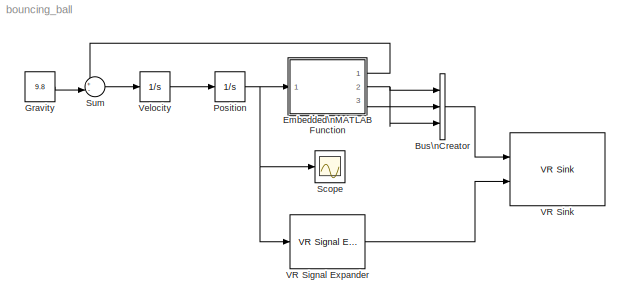
MODEL bouncing_ball
KIND model
BLOCK [BusCreator] Bus\nCreator
  DisplayOption = bar
  Inputs = 3
  Ports = [3, 1]
  SID = 14
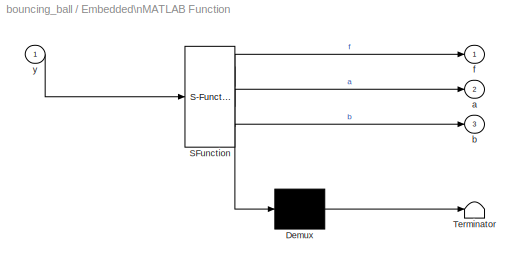
BLOCK [SubSystem] Embedded\nMATLAB Function
  ErrorFcn = Stateflow.Translate.translate
  FunctionWithSeparateData = off
  MaskHideContents = off
  MinAlgLoopOccurrences = off
  Opaque = off
  PermitHierarchicalResolution = ExplicitOnly
  Ports = [1, 3]
  PropExecContextOutsideSubsystem = off
  RTWSystemCode = Auto
  RequestExecContextInheritance = off
  SFBlockType = MATLAB Function
  SID = 4
  TreatAsAtomicUnit = on
BLOCK [Demux] Embedded\nMATLAB Function/ Demux 
  Outputs = 1
  Ports = [1, 1]
  SID = 4::16
BLOCK [S-Function] Embedded\nMATLAB Function/ SFunction 
  EnableBusSupport = on
  FunctionName = sf_sfun
  PortCounts = [1 4]
  Ports = [1, 4]
  SID = 4::15
  Tag = Stateflow S-Function bouncing_ball 2
BLOCK [Terminator] Embedded\nMATLAB Function/ Terminator 
  SID = 4::17
BLOCK [Outport] Embedded\nMATLAB Function/a
  IconDisplay = Port number
  Port = 2
  SID = 4::13
BLOCK [Outport] Embedded\nMATLAB Function/b
  IconDisplay = Port number
  Port = 3
  SID = 4::14
BLOCK [Outport] Embedded\nMATLAB Function/f
  IconDisplay = Port number
  SID = 4::12
BLOCK [Inport] Embedded\nMATLAB Function/y
  IconDisplay = Port number
  SID = 4::11
BLOCK [Constant] Gravity
  SID = 1
  Value = 9.8
BLOCK [Integrator] Position
  InitialCondition = 20
  Ports = [1, 1]
  SID = 3
BLOCK [Scope] Scope
  DataFormat = StructureWithTime
  Floating = off
  NumInputPorts = 1
  Ports = [1]
  SID = 6
  SampleTime = 0
  ShowLegends = off
  YMax = 22.5
  YMin = 0
BLOCK [Sum] Sum
  IconShape = round
  InputSameDT = off
  Inputs = +-|
  OutDataTypeStr = Inherit: Inherit via internal rule
  Ports = [2, 1]
  SID = 5
  SaturateOnIntegerOverflow = off
BLOCK [Reference] VR Signal Expander  REF=vrlib/VR Signal Expander
  Ports = [1, 1]
  SID = 11
  SourceBlock = vrlib/VR Signal Expander
  SourceType = VR Signal Expander
  outidx = [2]
  outwidth = 3
BLOCK [Reference] VR Sink  REF=vrlib/VR Sink
  AllowVariableSize = off
  AutoView = off
  FieldsWritten = Ball.scale.3.1.double#Ball.translation.3.1.double
  FigureProperties = {'Position', 'Name', 'Viewpoint', 'CameraBound', 'CameraDirection', 'CameraPosition', 'CameraUpVector', 'ZoomFactor', 'Antialiasing', 'Headlight', 'Lighting', 'NavPanel', 'StatusBar', 'ToolBar', 'Textures', 'Transparency', 'Triad', 'Wireframe', 'NavZones', 'NavMode', 'NavSpeed', 'CaptureFileFormat', 'CaptureFileName', 'Record2DCompressMethod', 'Record2DCompressQuality', 'Record2D', 'Record2DFileNa...<+597ch>
  InstantiateOnLoad = on
  Ports = [2]
  RemoteChange = off
  RemoteView = on
  SID = 10
  SampleTime = 0.01
  SourceBlock = vrlib/VR Sink
  SourceType = Virtual Reality Sink
  VideoDimensions = []
  ViewEnable = on
  WorldFileName = bouncing_ball.wrl
BLOCK [Integrator] Velocity
  Ports = [1, 1]
  SID = 2
LINE Bus\nCreator:1 -> VR Sink:1
LINE Embedded\nMATLAB Function/ Demux :1 -> Embedded\nMATLAB Function/ Terminator :1
LINE Embedded\nMATLAB Function/ SFunction :1 -> Embedded\nMATLAB Function/ Demux :1
LINE Embedded\nMATLAB Function/ SFunction :2 -> Embedded\nMATLAB Function/f:1
LINE Embedded\nMATLAB Function/ SFunction :3 -> Embedded\nMATLAB Function/a:1
LINE Embedded\nMATLAB Function/ SFunction :4 -> Embedded\nMATLAB Function/b:1
LINE Embedded\nMATLAB Function/y:1 -> Embedded\nMATLAB Function/ SFunction :1
LINE Embedded\nMATLAB Function:1 -> Sum:1
NET Embedded\nMATLAB Function:2 -> Bus\nCreator:1, Bus\nCreator:3
LINE Embedded\nMATLAB Function:3 -> Bus\nCreator:2
LINE Gravity:1 -> Sum:2
NET Position:1 -> Embedded\nMATLAB Function:1, Scope:1, VR Signal Expander:1
LINE Sum:1 -> Velocity:1
LINE VR Signal Expander:1 -> VR Sink:2
LINE Velocity:1 -> Position:1
note: NET lines group one-source signal fan-out (src -> all destinations, sorted); 1:1 wires keep LINE
CHART Embedded\nMATLAB Function states=1 transitions=1
  STATE_LABEL 'eML_blk_kernel()'
